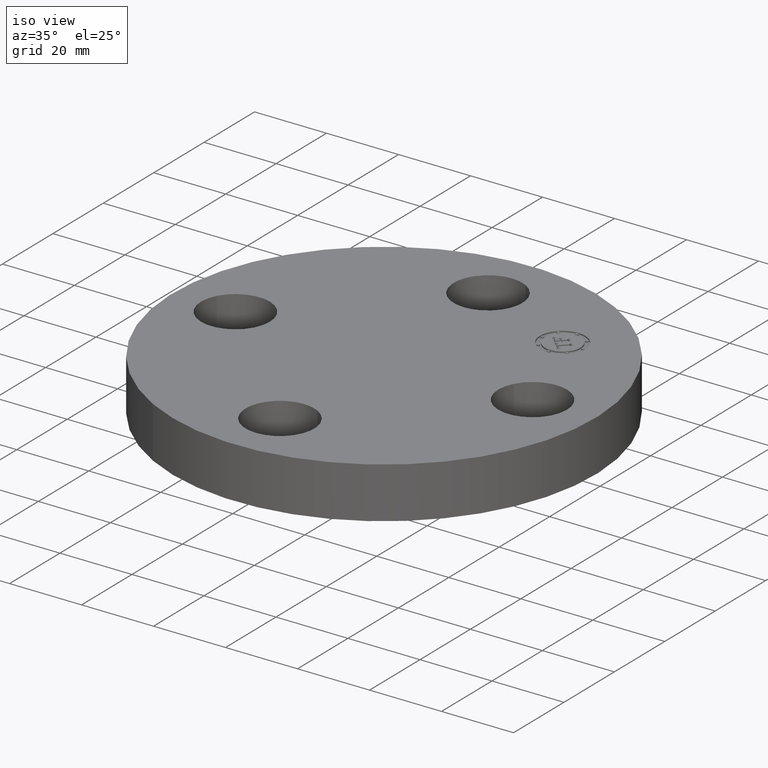
[diagram: clean part render]
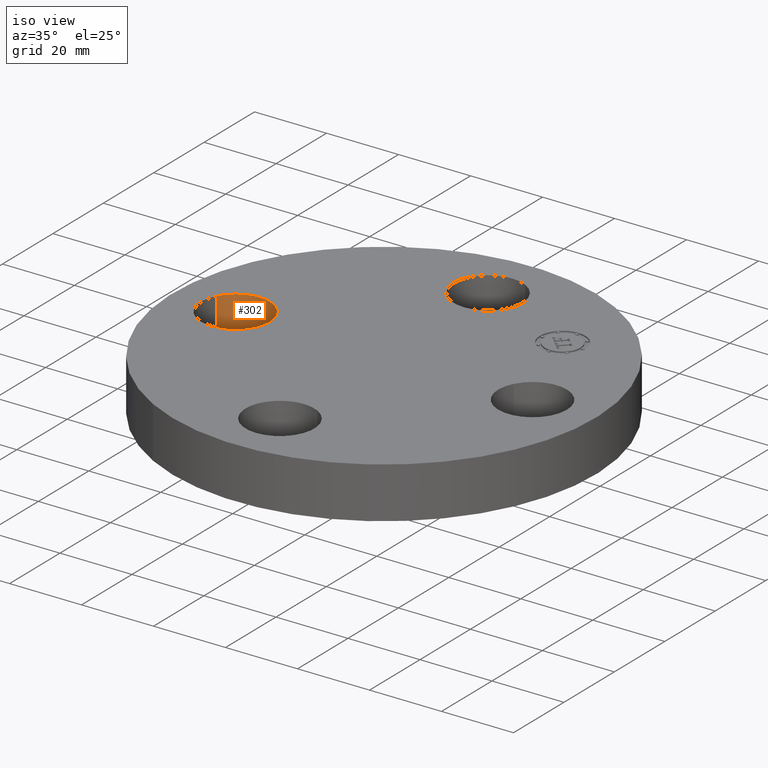
[diagram: same view with one face highlighted and labeled with its STEP entity id]
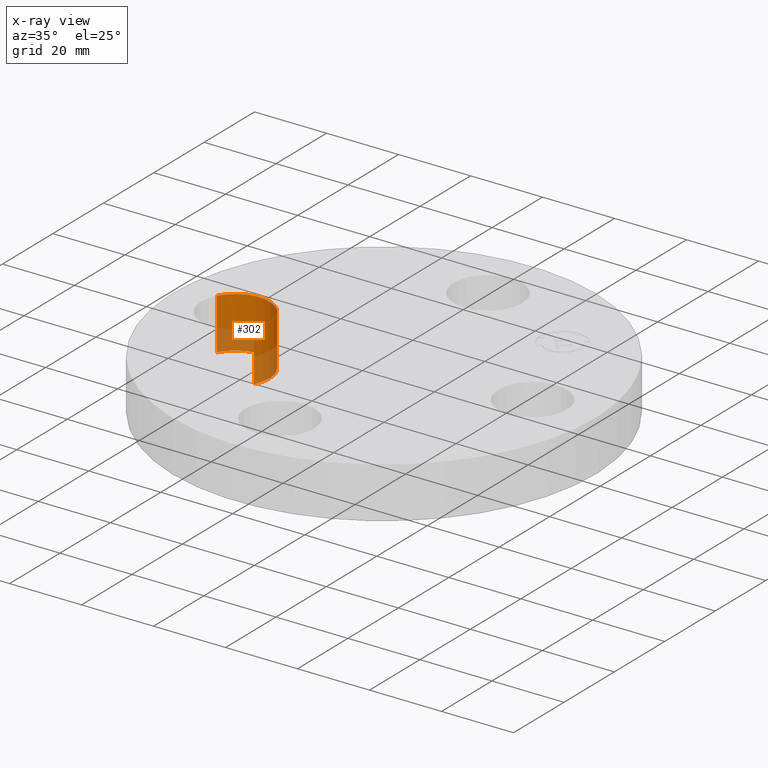
[diagram: x-ray of the same camera — body ghosted, the highlighted face saturated]
A machine part, iso view. The second image highlights one B-rep face of the part: STEP entity #302.
The next image is the same camera in x-ray: the body ghosted, the highlighted face saturated — about 38% of this face is hidden behind the body in this view.
In plain terms, the highlighted cylindrical surface (partial cylindrical patch) has radius 9.525 mm, axis along (-0, 0, -1).
Its self-contained STEP definition (entity closure, byte-faithful):
#191=AXIS2_PLACEMENT_3D('Circle Axis2P3D',#189,#190,$) ;
#263=AXIS2_PLACEMENT_3D('Cylinder Axis2P3D',#260,#261,#262) ;
#293=AXIS2_PLACEMENT_3D('Circle Axis2P3D',#291,#292,$) ;
#184=CARTESIAN_POINT('Vertex',(-1.2959065393,-0.179784576977,0.)) ;
#186=CARTESIAN_POINT('Vertex',(-1.95409346072,0.179784576977,0.)) ;
#189=CARTESIAN_POINT('Axis2P3D Location',(-1.62500000001,-2.09805925913E-016,0.)) ;
#260=CARTESIAN_POINT('Axis2P3D Location',(-1.62500000001,-1.99005104862E-016,0.556062992128)) ;
#265=CARTESIAN_POINT('Line Origine',(-1.2959065393,-0.179784576977,0.280000000001)) ;
#269=CARTESIAN_POINT('Vertex',(-1.2959065393,-0.179784576977,0.560000000002)) ;
#272=CARTESIAN_POINT('Line Origine',(-1.95409346072,0.179784576977,0.280000000001)) ;
#276=CARTESIAN_POINT('Vertex',(-1.95409346072,0.179784576977,0.560000000002)) ;
#291=CARTESIAN_POINT('Axis2P3D Location',(-1.62500000001,-1.99005104862E-016,0.560000000002)) ;
#190=DIRECTION('Axis2P3D Direction',(0.,0.,-0.0393700787402)) ;
#261=DIRECTION('Axis2P3D Direction',(-0.,0.,-0.0393700787402)) ;
#262=DIRECTION('Axis2P3D XDirection',(-0.0345504945626,0.0188750212049,0.)) ;
#266=DIRECTION('Vector Direction',(0.,0.,-0.0393700787402)) ;
#273=DIRECTION('Vector Direction',(0.,0.,-0.0393700787402)) ;
#292=DIRECTION('Axis2P3D Direction',(-0.,0.,-0.0393700787402)) ;
#267=VECTOR('Line Direction',#266,0.0393700787402) ;
#274=VECTOR('Line Direction',#273,0.0393700787402) ;
#297=ORIENTED_EDGE('',*,*,#278,.F.) ;
#298=ORIENTED_EDGE('',*,*,#193,.T.) ;
#299=ORIENTED_EDGE('',*,*,#271,.T.) ;
#300=ORIENTED_EDGE('',*,*,#295,.F.) ;
#302=ADVANCED_FACE('PartBody',(#301),#264,.F.) ;
#192=CIRCLE('generated circle',#191,0.375000000002) ;
#294=CIRCLE('generated circle',#293,0.375000000002) ;
#264=CYLINDRICAL_SURFACE('generated cylinder',#263,0.375000000002) ;
#193=EDGE_CURVE('',#187,#185,#192,.T.) ;
#271=EDGE_CURVE('',#185,#270,#268,.F.) ;
#278=EDGE_CURVE('',#187,#277,#275,.F.) ;
#295=EDGE_CURVE('',#277,#270,#294,.T.) ;
#296=EDGE_LOOP('',(#297,#298,#299,#300)) ;
#301=FACE_OUTER_BOUND('',#296,.T.) ;
#268=LINE('Line',#265,#267) ;
#275=LINE('Line',#272,#274) ;
#185=VERTEX_POINT('',#184) ;
#187=VERTEX_POINT('',#186) ;
#270=VERTEX_POINT('',#269) ;
#277=VERTEX_POINT('',#276) ;